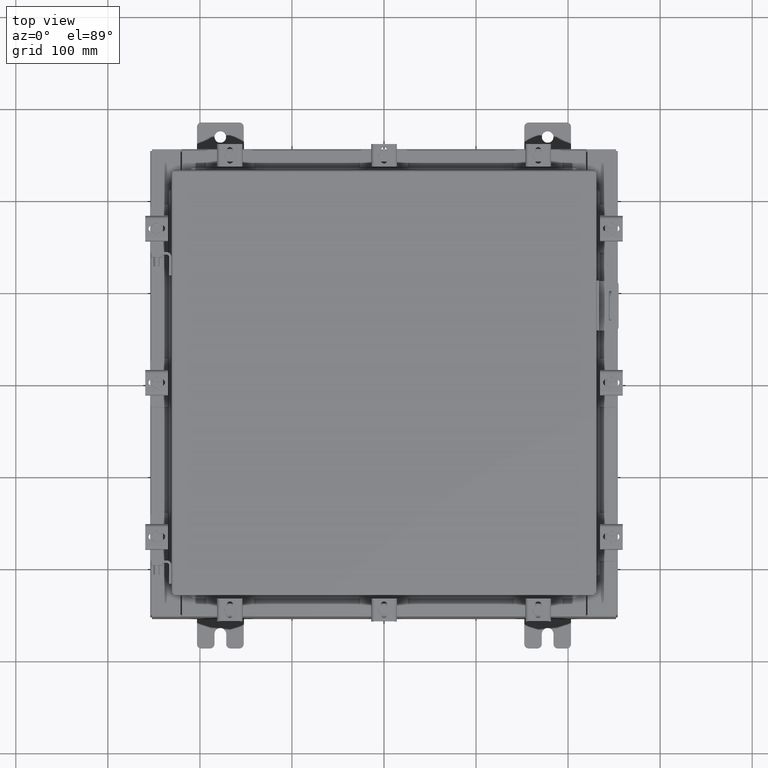
[diagram: clean part render]
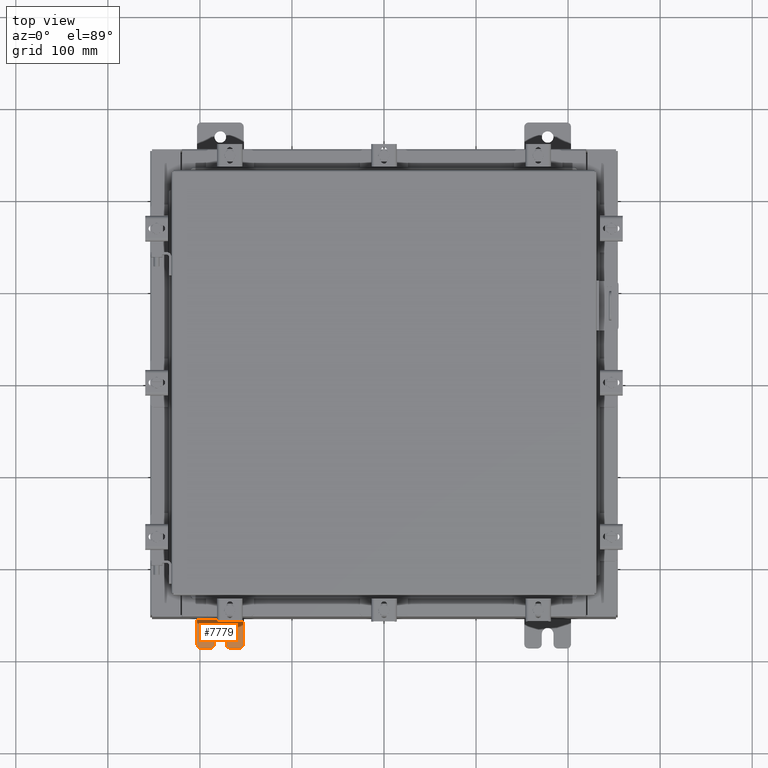
[diagram: same view with one face highlighted and labeled with its STEP entity id]
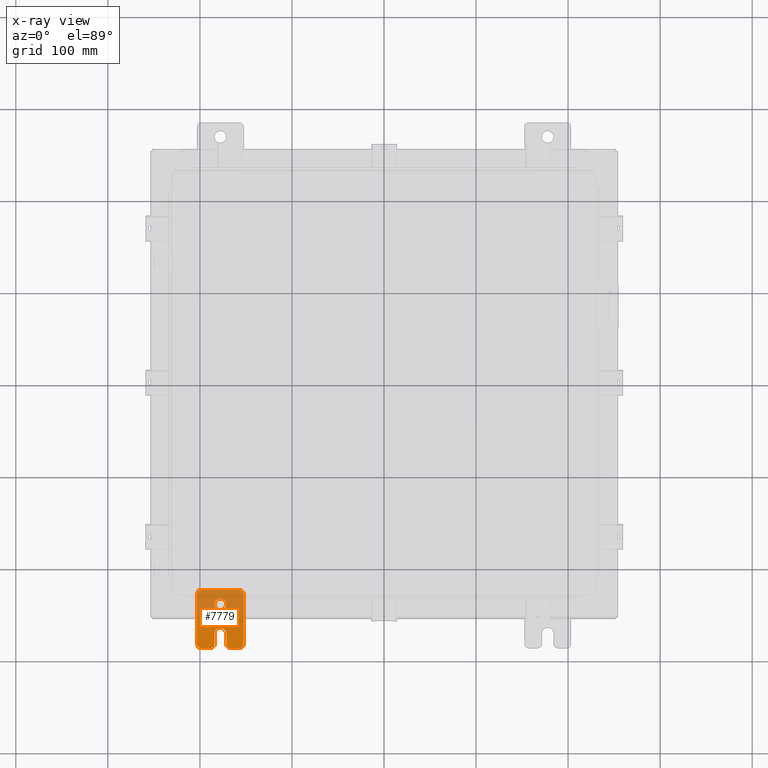
[diagram: x-ray of the same camera — body ghosted, the highlighted face saturated]
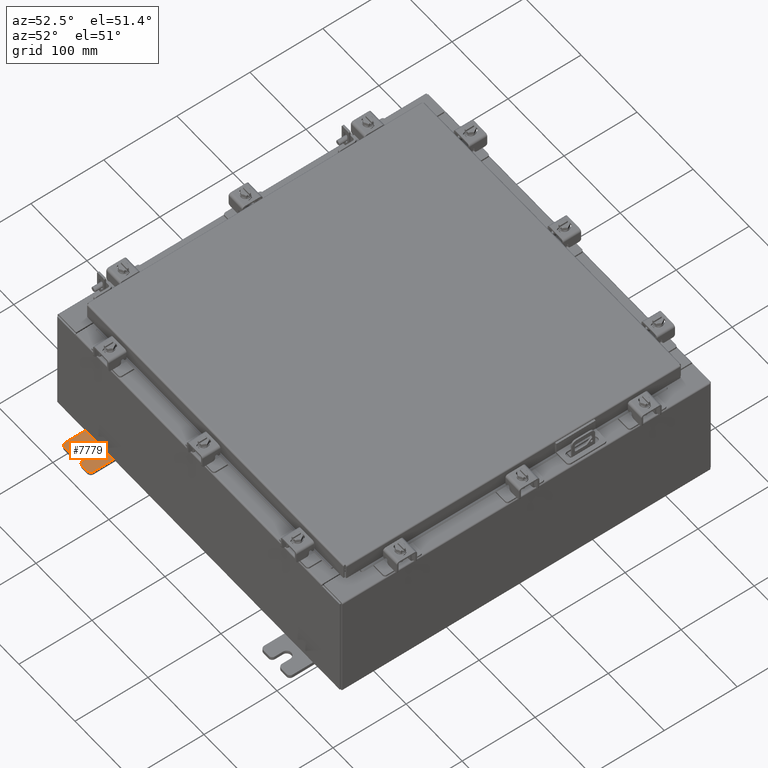
[diagram: same view with one face highlighted and labeled with its STEP entity id]
A machine part, top view. The second image highlights one B-rep face of the part: STEP entity #7779.
The next image is the same camera in x-ray: the body ghosted, the highlighted face saturated — about 53% of this face is hidden behind the body in this view.
A second angle (auxiliary view) of the same face is appended — the face is thin or edge-on in the first view.
In plain terms, the highlighted planar face has unit normal (0, 0, 1).
Its self-contained STEP definition (entity closure, byte-faithful):
#190 = DIRECTION ( 'NONE',  ( 0.0000000000000000000, -1.639108796198553600E-015, -1.000000000000000000 ) ) ;
#385 = FACE_BOUND ( 'NONE', #4643, .T. ) ;
#467 = VERTEX_POINT ( 'NONE', #21603 ) ;
#897 = ORIENTED_EDGE ( 'NONE', *, *, #1837, .T. ) ;
#945 = DIRECTION ( 'NONE',  ( 1.000000000000000000, -0.0000000000000000000, -5.163192708025532000E-017 ) ) ;
#1049 = VECTOR ( 'NONE', #3340, 39.37007874015748100 ) ;
#1279 = PLANE ( 'NONE',  #14582 ) ;
#1307 = AXIS2_PLACEMENT_3D ( 'NONE', #10061, #22173, #11814 ) ;
#1381 = CARTESIAN_POINT ( 'NONE',  ( 0.0000000000000000000, 1.059999999999993600, -0.8100000000000089400 ) ) ;
#1419 = EDGE_CURVE ( 'NONE', #15451, #22502, #10753, .T. ) ;
#1584 = CIRCLE ( 'NONE', #18905, 0.1900000000000011100 ) ;
#1644 = CARTESIAN_POINT ( 'NONE',  ( 0.0000000000000000000, 1.059999999999996500, 0.9999999999999953400 ) ) ;
#1837 = EDGE_CURVE ( 'NONE', #12200, #19619, #17518, .T. ) ;
#1893 = ORIENTED_EDGE ( 'NONE', *, *, #19223, .T. ) ;
#1996 = DIRECTION ( 'NONE',  ( 1.000000000000000000, -0.0000000000000000000, -5.163192708025532000E-017 ) ) ;
#2050 = CARTESIAN_POINT ( 'NONE',  ( 4.168508244714285900E-016, 0.6249999999999992200, 0.2499999999999999200 ) ) ;
#2305 = CIRCLE ( 'NONE', #2621, 0.1900000000000011100 ) ;
#2621 = AXIS2_PLACEMENT_3D ( 'NONE', #8298, #20419, #10044 ) ;
#2844 = CARTESIAN_POINT ( 'NONE',  ( 3.910348609313009100E-016, 0.6249999999999992200, -0.2499999999999999200 ) ) ;
#2890 = DIRECTION ( 'NONE',  ( -5.163192708025533800E-017, 0.0000000000000000000, -1.000000000000000000 ) ) ;
#3160 = DIRECTION ( 'NONE',  ( 0.0000000000000000000, 0.0000000000000000000, -1.000000000000000000 ) ) ;
#3227 = EDGE_CURVE ( 'NONE', #9210, #21077, #16635, .T. ) ;
#3228 = ORIENTED_EDGE ( 'NONE', *, *, #4702, .F. ) ;
#3340 = DIRECTION ( 'NONE',  ( 0.0000000000000000000, -1.639108796198553600E-015, -1.000000000000000000 ) ) ;
#3364 = DIRECTION ( 'NONE',  ( -5.163192708025533800E-017, 0.0000000000000000000, -1.000000000000000000 ) ) ;
#3751 = EDGE_CURVE ( 'NONE', #11434, #9813, #9015, .T. ) ;
#3833 = CARTESIAN_POINT ( 'NONE',  ( 0.0000000000000000000, -1.250000000000005600, -1.000000000000006200 ) ) ;
#4080 = VERTEX_POINT ( 'NONE', #16983 ) ;
#4158 = DIRECTION ( 'NONE',  ( 6.556435184794182400E-016, 1.000000000000000000, 0.0000000000000000000 ) ) ;
#4224 = CARTESIAN_POINT ( 'NONE',  ( 4.780733988912460100E-016, -0.6249999999999993300, 5.858939755051854500E-017 ) ) ;
#4643 = EDGE_LOOP ( 'NONE', ( #12078, #3228 ) ) ;
#4702 = EDGE_CURVE ( 'NONE', #22502, #15451, #17371, .T. ) ;
#4844 = DIRECTION ( 'NONE',  ( -0.0000000000000000000, 0.0000000000000000000, -1.000000000000000000 ) ) ;
#4953 = VECTOR ( 'NONE', #13181, 39.37007874015748100 ) ;
#5110 = CARTESIAN_POINT ( 'NONE',  ( 1.928684683526972300E-016, -1.060000000000002100, 0.2500000000000005000 ) ) ;
#5168 = VERTEX_POINT ( 'NONE', #21948 ) ;
#5458 = AXIS2_PLACEMENT_3D ( 'NONE', #8264, #1996, #3364 ) ;
#5560 = AXIS2_PLACEMENT_3D ( 'NONE', #1381, #13589, #3160 ) ;
#5953 = EDGE_CURVE ( 'NONE', #19619, #5168, #9447, .T. ) ;
#5985 = DIRECTION ( 'NONE',  ( -6.523827964459551700E-016, -1.000000000000000000, 0.0000000000000000000 ) ) ;
#6271 = CARTESIAN_POINT ( 'NONE',  ( 0.0000000000000000000, 1.059999999999996300, 0.8099999999999938400 ) ) ;
#6327 = VERTEX_POINT ( 'NONE', #18563 ) ;
#6406 = CARTESIAN_POINT ( 'NONE',  ( 0.0000000000000000000, -1.060000000000002100, 0.4400000000000016700 ) ) ;
#6500 = AXIS2_PLACEMENT_3D ( 'NONE', #16495, #945, #2890 ) ;
#6990 = EDGE_CURVE ( 'NONE', #21077, #4080, #2305, .T. ) ;
#7161 = CARTESIAN_POINT ( 'NONE',  ( 0.0000000000000000000, -1.250000000000002400, 0.8099999999999980500 ) ) ;
#7375 = CARTESIAN_POINT ( 'NONE',  ( 0.0000000000000000000, -0.6249999999999992200, 0.2500000000000005000 ) ) ;
#7407 = DIRECTION ( 'NONE',  ( 0.0000000000000000000, 1.639108796198553600E-015, 1.000000000000000000 ) ) ;
#7562 = EDGE_CURVE ( 'NONE', #10313, #9210, #17577, .T. ) ;
#7639 = ORIENTED_EDGE ( 'NONE', *, *, #3227, .T. ) ;
#7779 = ADVANCED_FACE ( 'NONE', ( #385, #18937 ), #1279, .T. ) ;
#8043 = DIRECTION ( 'NONE',  ( 0.0000000000000000000, 0.0000000000000000000, -1.000000000000000000 ) ) ;
#8147 = DIRECTION ( 'NONE',  ( 0.0000000000000000000, 0.0000000000000000000, -1.000000000000000000 ) ) ;
#8158 = ORIENTED_EDGE ( 'NONE', *, *, #6990, .T. ) ;
#8264 = CARTESIAN_POINT ( 'NONE',  ( 4.039428427013647300E-016, 0.6249999999999992200, -9.783840404509077400E-018 ) ) ;
#8298 = CARTESIAN_POINT ( 'NONE',  ( 0.0000000000000000000, -1.060000000000003400, -0.4400000000000005000 ) ) ;
#8509 = CARTESIAN_POINT ( 'NONE',  ( 0.0000000000000000000, -1.060000000000004100, -0.8100000000000050500 ) ) ;
#8689 = VERTEX_POINT ( 'NONE', #7161 ) ;
#8805 = CIRCLE ( 'NONE', #20082, 0.1900000000000011400 ) ;
#9015 = LINE ( 'NONE', #20012, #4953 ) ;
#9210 = VERTEX_POINT ( 'NONE', #18980 ) ;
#9447 = CIRCLE ( 'NONE', #5560, 0.1900000000000011100 ) ;
#9791 = ORIENTED_EDGE ( 'NONE', *, *, #16059, .T. ) ;
#9813 = VERTEX_POINT ( 'NONE', #12941 ) ;
#9830 = LINE ( 'NONE', #13765, #1049 ) ;
#10044 = DIRECTION ( 'NONE',  ( 0.0000000000000000000, 0.0000000000000000000, -1.000000000000000000 ) ) ;
#10061 = CARTESIAN_POINT ( 'NONE',  ( 0.0000000000000000000, -1.060000000000001600, 0.8099999999999978300 ) ) ;
#10257 = DIRECTION ( 'NONE',  ( 0.0000000000000000000, 0.0000000000000000000, -1.000000000000000000 ) ) ;
#10313 = VERTEX_POINT ( 'NONE', #7375 ) ;
#10444 = ORIENTED_EDGE ( 'NONE', *, *, #5953, .T. ) ;
#10753 = CIRCLE ( 'NONE', #5458, 0.2499999999999999200 ) ;
#11415 = CIRCLE ( 'NONE', #15531, 0.1900000000000011100 ) ;
#11434 = VERTEX_POINT ( 'NONE', #1644 ) ;
#11814 = DIRECTION ( 'NONE',  ( 0.0000000000000000000, 0.0000000000000000000, -1.000000000000000000 ) ) ;
#12078 = ORIENTED_EDGE ( 'NONE', *, *, #1419, .F. ) ;
#12200 = VERTEX_POINT ( 'NONE', #17321 ) ;
#12575 = CARTESIAN_POINT ( 'NONE',  ( 0.0000000000000000000, 1.249999999999994200, -1.000000000000010400 ) ) ;
#12900 = VECTOR ( 'NONE', #17483, 39.37007874015748100 ) ;
#12941 = CARTESIAN_POINT ( 'NONE',  ( 0.0000000000000000000, -1.060000000000001200, 0.9999999999999988900 ) ) ;
#13095 = EDGE_CURVE ( 'NONE', #15220, #12200, #1584, .T. ) ;
#13130 = ORIENTED_EDGE ( 'NONE', *, *, #16355, .T. ) ;
#13181 = DIRECTION ( 'NONE',  ( 0.0000000000000000000, -1.000000000000000000, 1.639108796198558100E-015 ) ) ;
#13409 = LINE ( 'NONE', #14568, #22075 ) ;
#13494 = CARTESIAN_POINT ( 'NONE',  ( 0.0000000000000000000, 0.0000000000000000000, 0.0000000000000000000 ) ) ;
#13521 = EDGE_CURVE ( 'NONE', #6327, #11434, #11415, .T. ) ;
#13589 = DIRECTION ( 'NONE',  ( 1.000000000000000000, 0.0000000000000000000, -0.0000000000000000000 ) ) ;
#13712 = VECTOR ( 'NONE', #7407, 39.37007874015748100 ) ;
#13765 = CARTESIAN_POINT ( 'NONE',  ( 0.0000000000000000000, -1.250000000000002200, 0.9999999999999992200 ) ) ;
#13906 = LINE ( 'NONE', #19189, #19966 ) ;
#14094 = CARTESIAN_POINT ( 'NONE',  ( 0.0000000000000000000, -1.250000000000005300, -0.8100000000000047200 ) ) ;
#14568 = CARTESIAN_POINT ( 'NONE',  ( 6.829619984160658000E-017, -1.250000000000003800, 0.2500000000000005000 ) ) ;
#14582 = AXIS2_PLACEMENT_3D ( 'NONE', #13494, #15230, #4844 ) ;
#14737 = DIRECTION ( 'NONE',  ( -6.556435184794182400E-016, -1.000000000000000000, -1.639108796198545600E-016 ) ) ;
#15220 = VERTEX_POINT ( 'NONE', #14094 ) ;
#15230 = DIRECTION ( 'NONE',  ( 1.000000000000000000, 0.0000000000000000000, -0.0000000000000000000 ) ) ;
#15451 = VERTEX_POINT ( 'NONE', #2844 ) ;
#15531 = AXIS2_PLACEMENT_3D ( 'NONE', #6271, #18427, #8043 ) ;
#15767 = ORIENTED_EDGE ( 'NONE', *, *, #18788, .T. ) ;
#16059 = EDGE_CURVE ( 'NONE', #5168, #6327, #18334, .T. ) ;
#16354 = ORIENTED_EDGE ( 'NONE', *, *, #16789, .T. ) ;
#16355 = EDGE_CURVE ( 'NONE', #467, #19365, #8805, .T. ) ;
#16375 = DIRECTION ( 'NONE',  ( -1.000000000000000000, 6.523827964459549700E-016, 5.163192708025532000E-017 ) ) ;
#16495 = CARTESIAN_POINT ( 'NONE',  ( 4.039428427013647300E-016, 0.6249999999999992200, -9.783840404509077400E-018 ) ) ;
#16635 = LINE ( 'NONE', #18103, #17203 ) ;
#16789 = EDGE_CURVE ( 'NONE', #19365, #10313, #13409, .T. ) ;
#16983 = CARTESIAN_POINT ( 'NONE',  ( 0.0000000000000000000, -1.250000000000004700, -0.4400000000000002200 ) ) ;
#17042 = CARTESIAN_POINT ( 'NONE',  ( 1.928684683526964400E-016, -1.060000000000003400, -0.2499999999999994400 ) ) ;
#17203 = VECTOR ( 'NONE', #14737, 39.37007874015748100 ) ;
#17321 = CARTESIAN_POINT ( 'NONE',  ( 0.0000000000000000000, -1.060000000000004500, -1.000000000000006400 ) ) ;
#17355 = AXIS2_PLACEMENT_3D ( 'NONE', #4224, #16375, #5985 ) ;
#17371 = CIRCLE ( 'NONE', #6500, 0.2499999999999999200 ) ;
#17483 = DIRECTION ( 'NONE',  ( 0.0000000000000000000, 1.000000000000000000, -1.639108796198558100E-015 ) ) ;
#17518 = LINE ( 'NONE', #3833, #12900 ) ;
#17577 = CIRCLE ( 'NONE', #17355, 0.2499999999999999200 ) ;
#18103 = CARTESIAN_POINT ( 'NONE',  ( 4.780733988912460100E-016, -0.6249999999999993300, -0.2499999999999993900 ) ) ;
#18146 = EDGE_LOOP ( 'NONE', ( #21321, #1893, #18903, #13130, #16354, #19792, #7639, #8158, #15767, #22109, #897, #10444, #9791, #21340 ) ) ;
#18334 = LINE ( 'NONE', #12575, #13712 ) ;
#18427 = DIRECTION ( 'NONE',  ( 1.000000000000000000, 0.0000000000000000000, -0.0000000000000000000 ) ) ;
#18556 = DIRECTION ( 'NONE',  ( 1.000000000000000000, 0.0000000000000000000, -0.0000000000000000000 ) ) ;
#18563 = CARTESIAN_POINT ( 'NONE',  ( 0.0000000000000000000, 1.249999999999997300, 0.8099999999999935000 ) ) ;
#18788 = EDGE_CURVE ( 'NONE', #4080, #15220, #13906, .T. ) ;
#18903 = ORIENTED_EDGE ( 'NONE', *, *, #19349, .T. ) ;
#18905 = AXIS2_PLACEMENT_3D ( 'NONE', #8509, #20623, #10257 ) ;
#18937 = FACE_OUTER_BOUND ( 'NONE', #18146, .T. ) ;
#18980 = CARTESIAN_POINT ( 'NONE',  ( 4.780733988912460100E-016, -0.6249999999999993300, -0.2499999999999998600 ) ) ;
#19189 = CARTESIAN_POINT ( 'NONE',  ( 0.0000000000000000000, -1.250000000000002200, 0.9999999999999992200 ) ) ;
#19223 = EDGE_CURVE ( 'NONE', #9813, #8689, #20660, .T. ) ;
#19349 = EDGE_CURVE ( 'NONE', #8689, #467, #9830, .T. ) ;
#19365 = VERTEX_POINT ( 'NONE', #5110 ) ;
#19619 = VERTEX_POINT ( 'NONE', #19976 ) ;
#19792 = ORIENTED_EDGE ( 'NONE', *, *, #7562, .T. ) ;
#19966 = VECTOR ( 'NONE', #190, 39.37007874015748100 ) ;
#19976 = CARTESIAN_POINT ( 'NONE',  ( 0.0000000000000000000, 1.059999999999993400, -1.000000000000010000 ) ) ;
#20012 = CARTESIAN_POINT ( 'NONE',  ( 0.0000000000000000000, 1.249999999999997600, 0.9999999999999951200 ) ) ;
#20082 = AXIS2_PLACEMENT_3D ( 'NONE', #6406, #18556, #8147 ) ;
#20419 = DIRECTION ( 'NONE',  ( 1.000000000000000000, 0.0000000000000000000, -0.0000000000000000000 ) ) ;
#20623 = DIRECTION ( 'NONE',  ( 1.000000000000000000, 0.0000000000000000000, -0.0000000000000000000 ) ) ;
#20660 = CIRCLE ( 'NONE', #1307, 0.1900000000000011100 ) ;
#21077 = VERTEX_POINT ( 'NONE', #17042 ) ;
#21321 = ORIENTED_EDGE ( 'NONE', *, *, #3751, .T. ) ;
#21340 = ORIENTED_EDGE ( 'NONE', *, *, #13521, .T. ) ;
#21603 = CARTESIAN_POINT ( 'NONE',  ( 0.0000000000000000000, -1.250000000000003100, 0.4400000000000020000 ) ) ;
#21948 = CARTESIAN_POINT ( 'NONE',  ( 0.0000000000000000000, 1.249999999999994700, -0.8100000000000092700 ) ) ;
#22075 = VECTOR ( 'NONE', #4158, 39.37007874015748100 ) ;
#22109 = ORIENTED_EDGE ( 'NONE', *, *, #13095, .T. ) ;
#22173 = DIRECTION ( 'NONE',  ( 1.000000000000000000, 0.0000000000000000000, -0.0000000000000000000 ) ) ;
#22502 = VERTEX_POINT ( 'NONE', #2050 ) ;